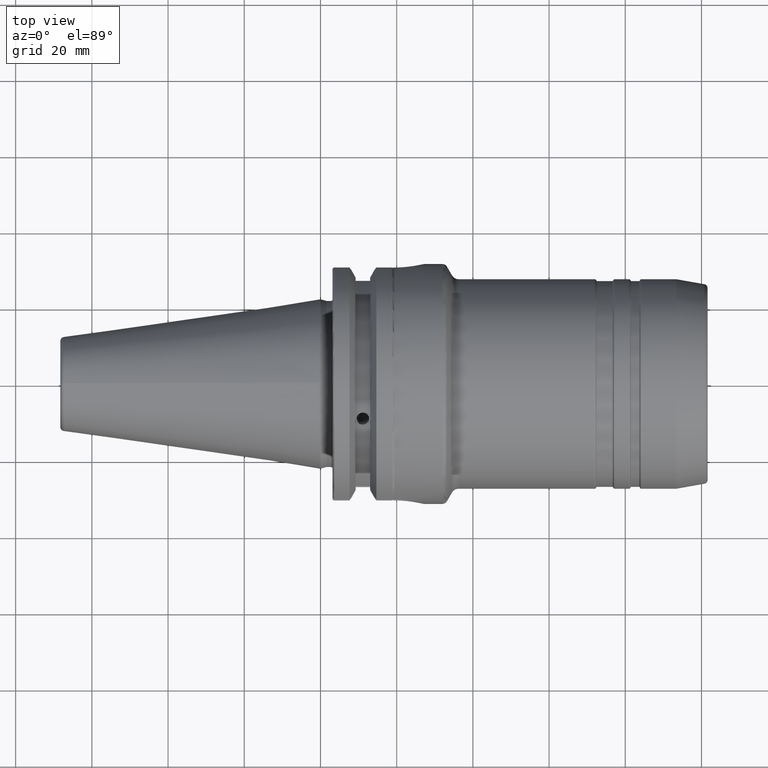
[diagram: clean part render]
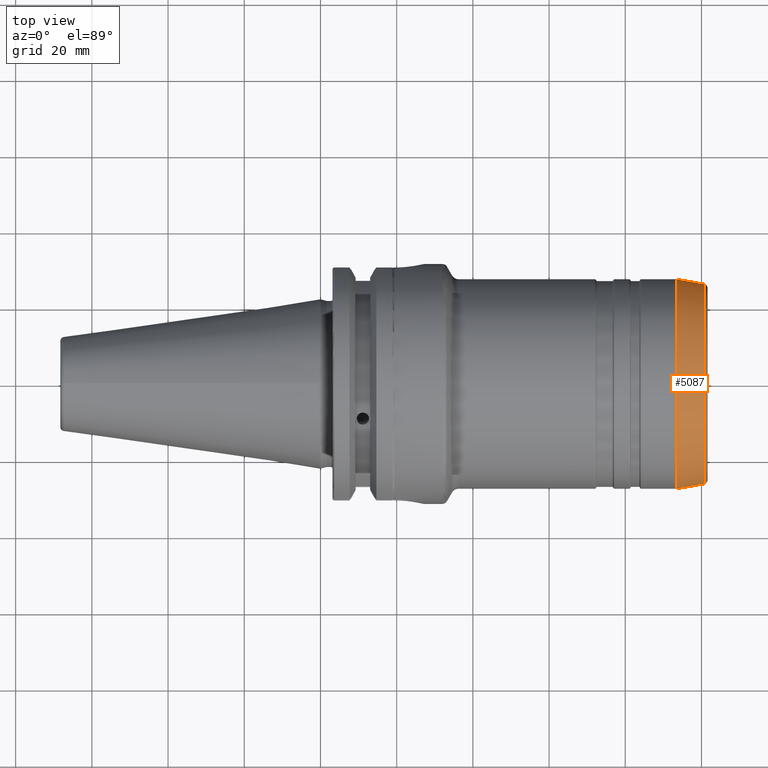
[diagram: same view with one face highlighted and labeled with its STEP entity id]
A machine part, top view. The second image highlights one B-rep face of the part: STEP entity #5087.
In plain terms, the highlighted conical surface has half-angle 10 deg.
Its self-contained STEP definition (entity closure, byte-faithful):
#1821=DIRECTION('',(9.848077530121E-1,-1.736481776677E-1,1.813663982487E-12));
#1822=VECTOR('',#1821,7.511117569389E0);
#1823=CARTESIAN_POINT('',(9.337664136155E1,2.75E1,0.E0));
#1824=LINE('',#1823,#1822);
#1830=DIRECTION('',(9.848077530121E-1,1.736481776677E-1,-1.812998448630E-12));
#1831=VECTOR('',#1830,7.511117569388E0);
#1832=CARTESIAN_POINT('',(9.337664136155E1,-2.75E1,0.E0));
#1833=LINE('',#1832,#1831);
#1864=CARTESIAN_POINT('',(1.007736481777E2,0.E0,0.E0));
#1865=DIRECTION('',(1.E0,0.E0,0.E0));
#1866=DIRECTION('',(0.E0,1.E0,0.E0));
#1867=AXIS2_PLACEMENT_3D('',#1864,#1865,#1866);
#1869=CARTESIAN_POINT('',(9.337664136155E1,0.E0,0.E0));
#1870=DIRECTION('',(1.E0,0.E0,0.E0));
#1871=DIRECTION('',(0.E0,1.E0,0.E0));
#1872=AXIS2_PLACEMENT_3D('',#1869,#1870,#1871);
#2790=CARTESIAN_POINT('',(9.337664136155E1,2.75E1,0.E0));
#2791=VERTEX_POINT('',#2790);
#2830=CARTESIAN_POINT('',(9.337664136155E1,-2.75E1,0.E0));
#2831=VERTEX_POINT('',#2830);
#2868=CARTESIAN_POINT('',(1.007736481777E2,2.619570812183E1,0.E0));
#2869=CARTESIAN_POINT('',(1.007736481777E2,-2.619570812183E1,0.E0));
#2870=VERTEX_POINT('',#2868);
#2871=VERTEX_POINT('',#2869);
#5076=CARTESIAN_POINT('',(9.707514476961E1,0.E0,0.E0));
#5077=DIRECTION('',(-1.E0,0.E0,0.E0));
#5078=DIRECTION('',(0.E0,1.E0,0.E0));
#5079=AXIS2_PLACEMENT_3D('',#5076,#5077,#5078);
#5080=CONICAL_SURFACE('',#5079,2.684785406091E1,1.000000000004E1);
#5081=ORIENTED_EDGE('',*,*,#5070,.T.);
#5082=ORIENTED_EDGE('',*,*,#5026,.F.);
#5083=ORIENTED_EDGE('',*,*,#4995,.F.);
#5084=ORIENTED_EDGE('',*,*,#5023,.T.);
#5085=EDGE_LOOP('',(#5081,#5082,#5083,#5084));
#5086=FACE_OUTER_BOUND('',#5085,.F.);
#5087=ADVANCED_FACE('',(#5086),#5080,.T.);
#1868=CIRCLE('',#1867,2.619570812183E1);
#1873=CIRCLE('',#1872,2.75E1);
#4995=EDGE_CURVE('',#2791,#2831,#1873,.T.);
#5023=EDGE_CURVE('',#2791,#2870,#1824,.T.);
#5026=EDGE_CURVE('',#2831,#2871,#1833,.T.);
#5070=EDGE_CURVE('',#2870,#2871,#1868,.T.);